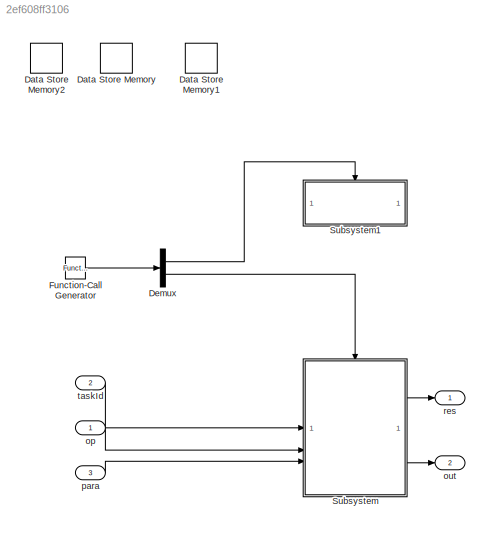
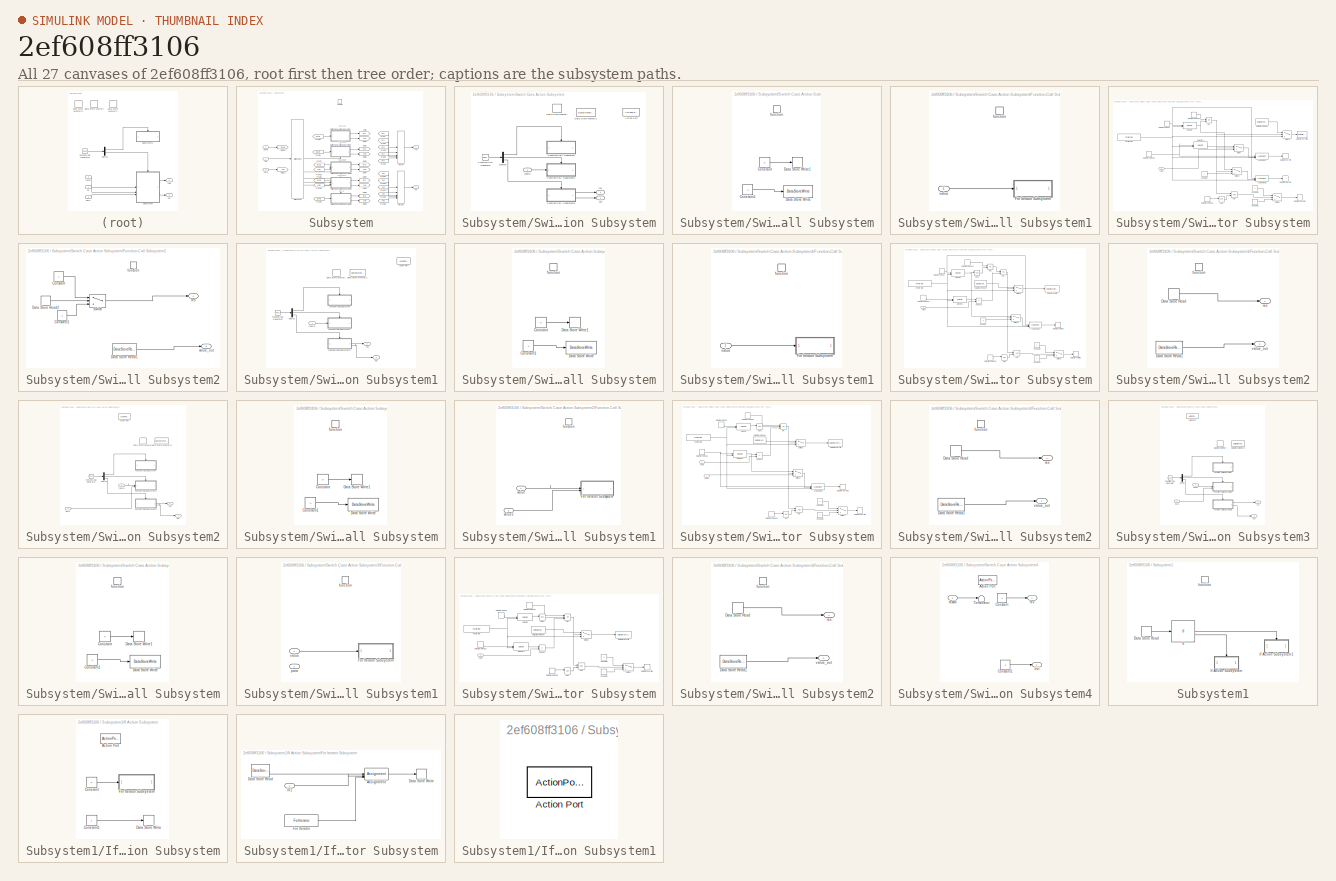
[diagram: thumbnail index - all 27 canvases of the model, root first then tree order]
MODEL slx_2ef608ff3106
KIND model
CONFIG AbsTol = auto
CONFIG EnableMultiTasking = off
CONFIG FixedStep = 1
CONFIG MaxStep = auto
CONFIG MinStep = auto
CONFIG RelTol = 1e-3
CONFIG SampleTimeConstraint = Unconstrained
CONFIG SolverName = FixedStepDiscrete
CONFIG StartTime = 0.0
CONFIG StopTime = 50000000
BLOCK [DataStoreMemory] Data Store Memory
  Dimensions = 16
  OutDataTypeStr = int32
  ReadBeforeWriteMsg = warning
  ShowAdditionalParam = off
  WriteAfterReadMsg = warning
  WriteAfterWriteMsg = warning
BLOCK [DataStoreMemory] Data Store Memory1
  DataStoreName = Aflag
  Dimensions = 16
  OutDataTypeStr = int8
  ReadBeforeWriteMsg = warning
  ShowAdditionalParam = off
  WriteAfterReadMsg = warning
  WriteAfterWriteMsg = warning
BLOCK [DataStoreMemory] Data Store Memory2
  DataStoreName = Init
  Dimensions = 1
  OutDataTypeStr = int8
  ReadBeforeWriteMsg = warning
  ShowAdditionalParam = off
  WriteAfterReadMsg = warning
  WriteAfterWriteMsg = warning
BLOCK [Demux] Demux
  Outputs = 2
BLOCK [Reference] Function-Call Generator  REF=simulink/Ports &
Subsystems/Function-Call
Generator
  SourceBlock = simulink/Ports &\nSubsystems/Function-Call\nGenerator
  SourceType = Function-Call Generator
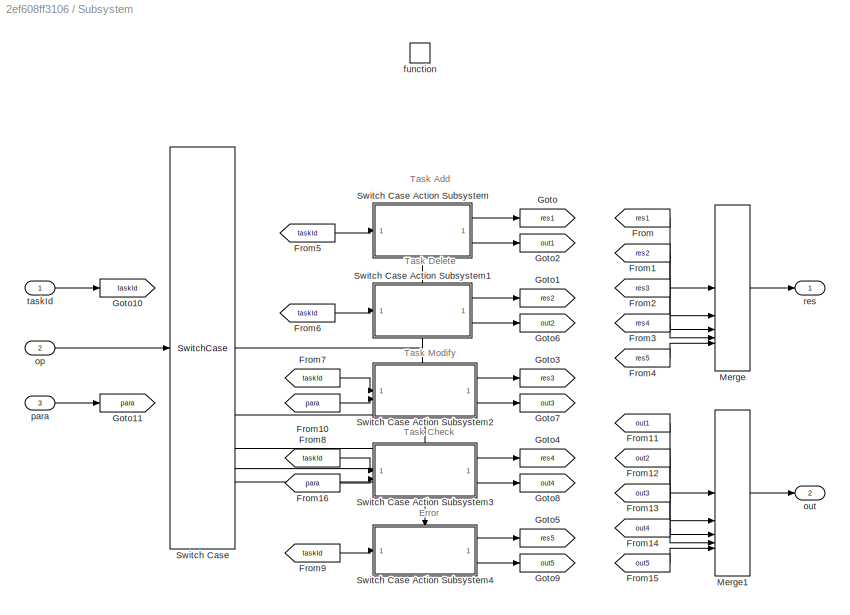
BLOCK [SubSystem] Subsystem
BLOCK [From] Subsystem/From
  GotoTag = res1
BLOCK [From] Subsystem/From1
  GotoTag = res2
BLOCK [From] Subsystem/From10
  GotoTag = para
BLOCK [From] Subsystem/From11
  GotoTag = out1
BLOCK [From] Subsystem/From12
  GotoTag = out2
BLOCK [From] Subsystem/From13
  GotoTag = out3
BLOCK [From] Subsystem/From14
  GotoTag = out4
BLOCK [From] Subsystem/From15
  GotoTag = out5
BLOCK [From] Subsystem/From16
  GotoTag = para
BLOCK [From] Subsystem/From2
  GotoTag = res3
BLOCK [From] Subsystem/From3
  GotoTag = res4
BLOCK [From] Subsystem/From4
  GotoTag = res5
BLOCK [From] Subsystem/From5
  GotoTag = taskId
BLOCK [From] Subsystem/From6
  GotoTag = taskId
BLOCK [From] Subsystem/From7
  GotoTag = taskId
BLOCK [From] Subsystem/From8
  GotoTag = taskId
BLOCK [From] Subsystem/From9
  GotoTag = taskId
BLOCK [Goto] Subsystem/Goto
  GotoTag = res1
BLOCK [Goto] Subsystem/Goto1
  GotoTag = res2
BLOCK [Goto] Subsystem/Goto10
  GotoTag = taskId
BLOCK [Goto] Subsystem/Goto11
  GotoTag = para
BLOCK [Goto] Subsystem/Goto2
  GotoTag = out1
BLOCK [Goto] Subsystem/Goto3
  GotoTag = res3
BLOCK [Goto] Subsystem/Goto4
  GotoTag = res4
BLOCK [Goto] Subsystem/Goto5
  GotoTag = res5
BLOCK [Goto] Subsystem/Goto6
  GotoTag = out2
BLOCK [Goto] Subsystem/Goto7
  GotoTag = out3
BLOCK [Goto] Subsystem/Goto8
  GotoTag = out4
BLOCK [Goto] Subsystem/Goto9
  GotoTag = out5
BLOCK [Merge] Subsystem/Merge
  Inputs = 5
BLOCK [Merge] Subsystem/Merge1
  Inputs = 5
BLOCK [SwitchCase] Subsystem/Switch Case
  CaseConditions = {1,2,3,4}
BLOCK [SubSystem] Subsystem/Switch Case Action Subsystem
  TreatAsAtomicUnit = on
BLOCK [ActionPort] Subsystem/Switch Case Action Subsystem/Action Port
  ActionPortLabel = case [ 1 ]:
BLOCK [DataStoreMemory] Subsystem/Switch Case Action Subsystem/Data Store Memory
  DataStoreName = find
  OutDataTypeStr = int32
  ReadBeforeWriteMsg = warning
  ShowAdditionalParam = off
  WriteAfterReadMsg = warning
  WriteAfterWriteMsg = warning
BLOCK [DataStoreMemory] Subsystem/Switch Case Action Subsystem/Data Store Memory1
  DataStoreName = ret_index
  OutDataTypeStr = int32
  ReadBeforeWriteMsg = warning
  ShowAdditionalParam = off
  WriteAfterReadMsg = warning
  WriteAfterWriteMsg = warning
BLOCK [Demux] Subsystem/Switch Case Action Subsystem/Demux
  Outputs = 3
BLOCK [Reference] Subsystem/Switch Case Action Subsystem/Function-Call Generator  REF=simulink/Ports &
Subsystems/Function-Call
Generator
  SourceBlock = simulink/Ports &\nSubsystems/Function-Call\nGenerator
  SourceType = Function-Call Generator
BLOCK [SubSystem] Subsystem/Switch Case Action Subsystem/Function-Call Subsystem
  TreatAsAtomicUnit = on
BLOCK [Constant] Subsystem/Switch Case Action Subsystem/Function-Call Subsystem/Constant
  OutDataTypeStr = int32
  Value = 0
BLOCK [Constant] Subsystem/Switch Case Action Subsystem/Function-Call Subsystem/Constant1
  OutDataTypeStr = int32
  Value = -1
BLOCK [DataStoreWrite] Subsystem/Switch Case Action Subsystem/Function-Call Subsystem/Data Store Write
  DataStoreName = ret_index
  IndexOptions = Index vector (dialog)
  Indices = 1
  OutputSizes = 1
BLOCK [DataStoreWrite] Subsystem/Switch Case Action Subsystem/Function-Call Subsystem/Data Store Write1
  DataStoreName = find
  IndexOptions = Index vector (dialog)
  Indices = 1
  OutputSizes = 1
BLOCK [TriggerPort] Subsystem/Switch Case Action Subsystem/Function-Call Subsystem/function
  StatesWhenEnabling = held
  TriggerType = function-call
  VariantControl = Variant
BLOCK [SubSystem] Subsystem/Switch Case Action Subsystem/Function-Call Subsystem1
  TreatAsAtomicUnit = on
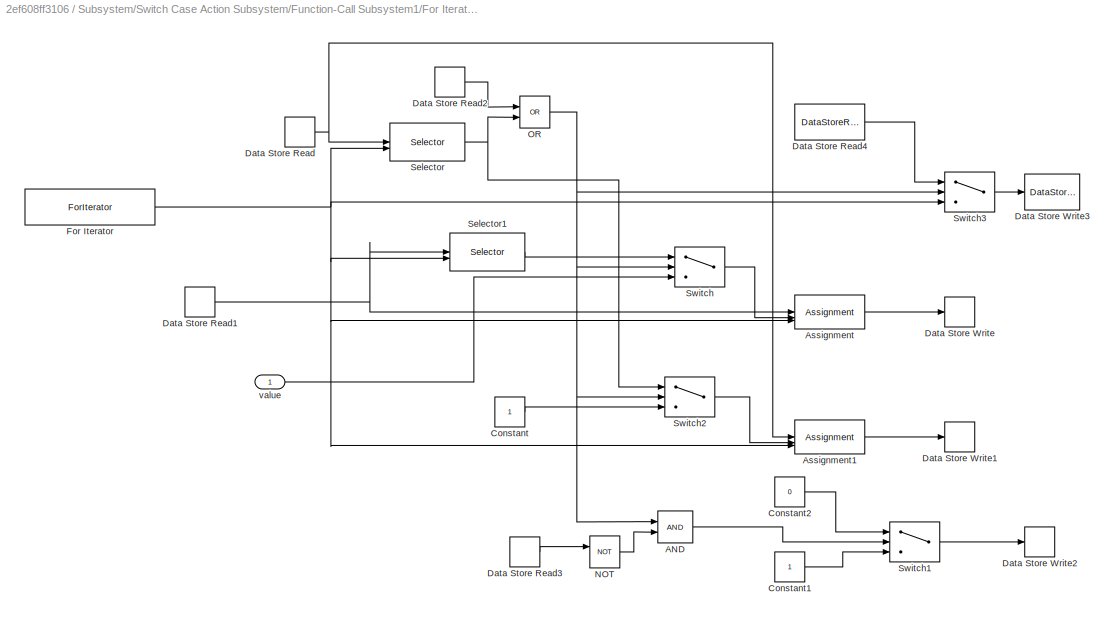
BLOCK [SubSystem] Subsystem/Switch Case Action Subsystem/Function-Call Subsystem1/For Iterator Subsystem
  TreatAsAtomicUnit = on
BLOCK [Logic] Subsystem/Switch Case Action Subsystem/Function-Call Subsystem1/For Iterator Subsystem/AND
  AllPortsSameDT = off
  IconShape = distinctive
  OutDataTypeStr = boolean
BLOCK [Assignment] Subsystem/Switch Case Action Subsystem/Function-Call Subsystem1/For Iterator Subsystem/Assignment
  DiagnosticForDimensions = Warning
  IndexMode = Zero-based
  IndexOptions = Index vector (port)
  Indices = 1
  OutputSizes = 1
BLOCK [Assignment] Subsystem/Switch Case Action Subsystem/Function-Call Subsystem1/For Iterator Subsystem/Assignment1
  DiagnosticForDimensions = Warning
  IndexMode = Zero-based
  IndexOptions = Index vector (port)
  Indices = 1
  OutputSizes = 1
BLOCK [Constant] Subsystem/Switch Case Action Subsystem/Function-Call Subsystem1/For Iterator Subsystem/Constant
  OutDataTypeStr = int8
BLOCK [Constant] Subsystem/Switch Case Action Subsystem/Function-Call Subsystem1/For Iterator Subsystem/Constant1
  OutDataTypeStr = int32
BLOCK [Constant] Subsystem/Switch Case Action Subsystem/Function-Call Subsystem1/For Iterator Subsystem/Constant2
  OutDataTypeStr = int32
  Value = 0
BLOCK [DataStoreRead] Subsystem/Switch Case Action Subsystem/Function-Call Subsystem1/For Iterator Subsystem/Data Store Read
  DataStoreName = Aflag
  IndexOptions = Index vector (dialog)
  Indices = 1
  OutputSizes = 1
BLOCK [DataStoreRead] Subsystem/Switch Case Action Subsystem/Function-Call Subsystem1/For Iterator Subsystem/Data Store Read1
  IndexOptions = Index vector (dialog)
  Indices = 1
  OutputSizes = 1
BLOCK [DataStoreRead] Subsystem/Switch Case Action Subsystem/Function-Call Subsystem1/For Iterator Subsystem/Data Store Read2
  DataStoreName = find
  IndexOptions = Index vector (dialog)
  Indices = 1
  OutputSizes = 1
BLOCK [DataStoreRead] Subsystem/Switch Case Action Subsystem/Function-Call Subsystem1/For Iterator Subsystem/Data Store Read3
  DataStoreName = find
  IndexOptions = Index vector (dialog)
  Indices = 1
  OutputSizes = 1
BLOCK [DataStoreRead] Subsystem/Switch Case Action Subsystem/Function-Call Subsystem1/For Iterator Subsystem/Data Store Read4
  DataStoreName = ret_index
  IndexOptions = Index vector (dialog)
  Indices = 1
  OutputSizes = 1
BLOCK [DataStoreWrite] Subsystem/Switch Case Action Subsystem/Function-Call Subsystem1/For Iterator Subsystem/Data Store Write
  IndexOptions = Index vector (dialog)
  Indices = 1
  OutputSizes = 1
BLOCK [DataStoreWrite] Subsystem/Switch Case Action Subsystem/Function-Call Subsystem1/For Iterator Subsystem/Data Store Write1
  DataStoreName = Aflag
  IndexOptions = Index vector (dialog)
  Indices = 1
  OutputSizes = 1
BLOCK [DataStoreWrite] Subsystem/Switch Case Action Subsystem/Function-Call Subsystem1/For Iterator Subsystem/Data Store Write2
  DataStoreName = find
  IndexOptions = Index vector (dialog)
  Indices = 1
  OutputSizes = 1
BLOCK [DataStoreWrite] Subsystem/Switch Case Action Subsystem/Function-Call Subsystem1/For Iterator Subsystem/Data Store Write3
  DataStoreName = ret_index
  IndexOptions = Index vector (dialog)
  Indices = 1
  OutputSizes = 1
BLOCK [ForIterator] Subsystem/Switch Case Action Subsystem/Function-Call Subsystem1/For Iterator Subsystem/For Iterator
  IndexMode = Zero-based
  IterationLimit = 16
BLOCK [Logic] Subsystem/Switch Case Action Subsystem/Function-Call Subsystem1/For Iterator Subsystem/NOT
  AllPortsSameDT = off
  IconShape = distinctive
  Operator = NOT
  OutDataTypeStr = boolean
BLOCK [Logic] Subsystem/Switch Case Action Subsystem/Function-Call Subsystem1/For Iterator Subsystem/OR
  AllPortsSameDT = off
  IconShape = distinctive
  Operator = OR
  OutDataTypeStr = boolean
BLOCK [Selector] Subsystem/Switch Case Action Subsystem/Function-Call Subsystem1/For Iterator Subsystem/Selector
  IndexMode = Zero-based
  IndexOptions = Index vector (port)
  Indices = [1 3]
  InputPortWidth = 16
  OutputSizes = 1
BLOCK [Selector] Subsystem/Switch Case Action Subsystem/Function-Call Subsystem1/For Iterator Subsystem/Selector1
  IndexMode = Zero-based
  IndexOptions = Index vector (port)
  Indices = [1 3]
  InputPortWidth = 16
  OutputSizes = 1
BLOCK [Switch] Subsystem/Switch Case Action Subsystem/Function-Call Subsystem1/For Iterator Subsystem/Switch
  Criteria = u2 ~= 0
  InputSameDT = off
  SaturateOnIntegerOverflow = off
BLOCK [Switch] Subsystem/Switch Case Action Subsystem/Function-Call Subsystem1/For Iterator Subsystem/Switch1
  Criteria = u2 ~= 0
  InputSameDT = off
  SaturateOnIntegerOverflow = off
BLOCK [Switch] Subsystem/Switch Case Action Subsystem/Function-Call Subsystem1/For Iterator Subsystem/Switch2
  Criteria = u2 ~= 0
  InputSameDT = off
  SaturateOnIntegerOverflow = off
BLOCK [Switch] Subsystem/Switch Case Action Subsystem/Function-Call Subsystem1/For Iterator Subsystem/Switch3
  Criteria = u2 ~= 0
  InputSameDT = off
  SaturateOnIntegerOverflow = off
BLOCK [Inport] Subsystem/Switch Case Action Subsystem/Function-Call Subsystem1/For Iterator Subsystem/value
BLOCK [TriggerPort] Subsystem/Switch Case Action Subsystem/Function-Call Subsystem1/function
  StatesWhenEnabling = held
  TriggerType = function-call
  VariantControl = Variant
BLOCK [Inport] Subsystem/Switch Case Action Subsystem/Function-Call Subsystem1/value
BLOCK [SubSystem] Subsystem/Switch Case Action Subsystem/Function-Call Subsystem2
  TreatAsAtomicUnit = on
BLOCK [Constant] Subsystem/Switch Case Action Subsystem/Function-Call Subsystem2/Constant
  OutDataTypeStr = int32
BLOCK [Constant] Subsystem/Switch Case Action Subsystem/Function-Call Subsystem2/Constant1
  OutDataTypeStr = int32
  Value = -1
BLOCK [DataStoreRead] Subsystem/Switch Case Action Subsystem/Function-Call Subsystem2/Data Store Read1
  DataStoreName = ret_index
  IndexOptions = Index vector (dialog)
  Indices = 1
  OutputSizes = 1
BLOCK [DataStoreRead] Subsystem/Switch Case Action Subsystem/Function-Call Subsystem2/Data Store Read2
  DataStoreName = find
  IndexOptions = Index vector (dialog)
  Indices = 1
  OutputSizes = 1
BLOCK [Switch] Subsystem/Switch Case Action Subsystem/Function-Call Subsystem2/Switch
  Criteria = u2 ~= 0
  InputSameDT = off
  SaturateOnIntegerOverflow = off
BLOCK [TriggerPort] Subsystem/Switch Case Action Subsystem/Function-Call Subsystem2/function
  StatesWhenEnabling = held
  TriggerType = function-call
  VariantControl = Variant
BLOCK [Outport] Subsystem/Switch Case Action Subsystem/Function-Call Subsystem2/res
BLOCK [Outport] Subsystem/Switch Case Action Subsystem/Function-Call Subsystem2/value_out
  Port = 2
BLOCK [Outport] Subsystem/Switch Case Action Subsystem/out
  Port = 2
BLOCK [Outport] Subsystem/Switch Case Action Subsystem/res
BLOCK [Inport] Subsystem/Switch Case Action Subsystem/taskId
BLOCK [SubSystem] Subsystem/Switch Case Action Subsystem1
  TreatAsAtomicUnit = on
BLOCK [ActionPort] Subsystem/Switch Case Action Subsystem1/Action Port
  ActionPortLabel = case [ 2 ]:
BLOCK [DataStoreMemory] Subsystem/Switch Case Action Subsystem1/Data Store Memory
  DataStoreName = find
  OutDataTypeStr = int32
  ReadBeforeWriteMsg = warning
  ShowAdditionalParam = off
  WriteAfterReadMsg = warning
  WriteAfterWriteMsg = warning
BLOCK [DataStoreMemory] Subsystem/Switch Case Action Subsystem1/Data Store Memory1
  DataStoreName = ret_index
  OutDataTypeStr = int32
  ReadBeforeWriteMsg = warning
  ShowAdditionalParam = off
  WriteAfterReadMsg = warning
  WriteAfterWriteMsg = warning
BLOCK [Demux] Subsystem/Switch Case Action Subsystem1/Demux
  Outputs = 3
BLOCK [Reference] Subsystem/Switch Case Action Subsystem1/Function-Call Generator  REF=simulink/Ports &
Subsystems/Function-Call
Generator
  SourceBlock = simulink/Ports &\nSubsystems/Function-Call\nGenerator
  SourceType = Function-Call Generator
BLOCK [SubSystem] Subsystem/Switch Case Action Subsystem1/Function-Call Subsystem
  TreatAsAtomicUnit = on
BLOCK [Constant] Subsystem/Switch Case Action Subsystem1/Function-Call Subsystem/Constant
  OutDataTypeStr = int32
  Value = 0
BLOCK [Constant] Subsystem/Switch Case Action Subsystem1/Function-Call Subsystem/Constant1
  OutDataTypeStr = int32
  Value = -1
BLOCK [DataStoreWrite] Subsystem/Switch Case Action Subsystem1/Function-Call Subsystem/Data Store Write
  DataStoreName = ret_index
  IndexOptions = Index vector (dialog)
  Indices = 1
  OutputSizes = 1
BLOCK [DataStoreWrite] Subsystem/Switch Case Action Subsystem1/Function-Call Subsystem/Data Store Write1
  DataStoreName = find
  IndexOptions = Index vector (dialog)
  Indices = 1
  OutputSizes = 1
BLOCK [TriggerPort] Subsystem/Switch Case Action Subsystem1/Function-Call Subsystem/function
  StatesWhenEnabling = held
  TriggerType = function-call
  VariantControl = Variant
BLOCK [SubSystem] Subsystem/Switch Case Action Subsystem1/Function-Call Subsystem1
  TreatAsAtomicUnit = on
BLOCK [SubSystem] Subsystem/Switch Case Action Subsystem1/Function-Call Subsystem1/For Iterator Subsystem
  TreatAsAtomicUnit = on
BLOCK [Logic] Subsystem/Switch Case Action Subsystem1/Function-Call Subsystem1/For Iterator Subsystem/AND
  AllPortsSameDT = off
  IconShape = distinctive
  OutDataTypeStr = boolean
BLOCK [Assignment] Subsystem/Switch Case Action Subsystem1/Function-Call Subsystem1/For Iterator Subsystem/Assignment1
  DiagnosticForDimensions = Warning
  IndexMode = Zero-based
  IndexOptions = Index vector (port)
  Indices = 1
  OutputSizes = 1
BLOCK [Constant] Subsystem/Switch Case Action Subsystem1/Function-Call Subsystem1/For Iterator Subsystem/Constant
  OutDataTypeStr = int8
  Value = 0
BLOCK [Constant] Subsystem/Switch Case Action Subsystem1/Function-Call Subsystem1/For Iterator Subsystem/Constant1
  OutDataTypeStr = int32
BLOCK [Constant] Subsystem/Switch Case Action Subsystem1/Function-Call Subsystem1/For Iterator Subsystem/Constant2
  OutDataTypeStr = int32
  Value = 0
BLOCK [DataStoreRead] Subsystem/Switch Case Action Subsystem1/Function-Call Subsystem1/For Iterator Subsystem/Data Store Read
  DataStoreName = Aflag
  IndexOptions = Index vector (dialog)
  Indices = 1
  OutputSizes = 1
BLOCK [DataStoreRead] Subsystem/Switch Case Action Subsystem1/Function-Call Subsystem1/For Iterator Subsystem/Data Store Read1
  IndexOptions = Index vector (dialog)
  Indices = 1
  OutputSizes = 1
BLOCK [DataStoreRead] Subsystem/Switch Case Action Subsystem1/Function-Call Subsystem1/For Iterator Subsystem/Data Store Read2
  DataStoreName = find
  IndexOptions = Index vector (dialog)
  Indices = 1
  OutputSizes = 1
BLOCK [DataStoreRead] Subsystem/Switch Case Action Subsystem1/Function-Call Subsystem1/For Iterator Subsystem/Data Store Read3
  DataStoreName = find
  IndexOptions = Index vector (dialog)
  Indices = 1
  OutputSizes = 1
BLOCK [DataStoreRead] Subsystem/Switch Case Action Subsystem1/Function-Call Subsystem1/For Iterator Subsystem/Data Store Read4
  DataStoreName = ret_index
  IndexOptions = Index vector (dialog)
  Indices = 1
  OutputSizes = 1
BLOCK [DataStoreWrite] Subsystem/Switch Case Action Subsystem1/Function-Call Subsystem1/For Iterator Subsystem/Data Store Write
  DataStoreName = ret_index
  IndexOptions = Index vector (dialog)
  Indices = 1
  OutputSizes = 1
BLOCK [DataStoreWrite] Subsystem/Switch Case Action Subsystem1/Function-Call Subsystem1/For Iterator Subsystem/Data Store Write1
  DataStoreName = Aflag
  IndexOptions = Index vector (dialog)
  Indices = 1
  OutputSizes = 1
BLOCK [DataStoreWrite] Subsystem/Switch Case Action Subsystem1/Function-Call Subsystem1/For Iterator Subsystem/Data Store Write2
  DataStoreName = find
  IndexOptions = Index vector (dialog)
  Indices = 1
  OutputSizes = 1
BLOCK [ForIterator] Subsystem/Switch Case Action Subsystem1/Function-Call Subsystem1/For Iterator Subsystem/For Iterator
  IndexMode = Zero-based
  IterationLimit = 16
BLOCK [Logic] Subsystem/Switch Case Action Subsystem1/Function-Call Subsystem1/For Iterator Subsystem/NOT
  AllPortsSameDT = off
  IconShape = distinctive
  Operator = NOT
  OutDataTypeStr = boolean
BLOCK [Logic] Subsystem/Switch Case Action Subsystem1/Function-Call Subsystem1/For Iterator Subsystem/NOT1
  AllPortsSameDT = off
  IconShape = distinctive
  Operator = NOT
  OutDataTypeStr = boolean
BLOCK [Logic] Subsystem/Switch Case Action Subsystem1/Function-Call Subsystem1/For Iterator Subsystem/OR
  AllPortsSameDT = off
  IconShape = distinctive
  Operator = OR
  OutDataTypeStr = boolean
BLOCK [Logic] Subsystem/Switch Case Action Subsystem1/Function-Call Subsystem1/For Iterator Subsystem/OR1
  AllPortsSameDT = off
  IconShape = distinctive
  Operator = OR
  OutDataTypeStr = boolean
BLOCK [Selector] Subsystem/Switch Case Action Subsystem1/Function-Call Subsystem1/For Iterator Subsystem/Selector
  IndexMode = Zero-based
  IndexOptions = Index vector (port)
  Indices = [1 3]
  InputPortWidth = 16
  OutputSizes = 1
BLOCK [Selector] Subsystem/Switch Case Action Subsystem1/Function-Call Subsystem1/For Iterator Subsystem/Selector1
  IndexMode = Zero-based
  IndexOptions = Index vector (port)
  Indices = [1 3]
  InputPortWidth = 16
  OutputSizes = 1
BLOCK [Sum] Subsystem/Switch Case Action Subsystem1/Function-Call Subsystem1/For Iterator Subsystem/Subtract
  IconShape = rectangular
  Inputs = +-
BLOCK [Switch] Subsystem/Switch Case Action Subsystem1/Function-Call Subsystem1/For Iterator Subsystem/Switch1
  Criteria = u2 ~= 0
  InputSameDT = off
  SaturateOnIntegerOverflow = off
BLOCK [Switch] Subsystem/Switch Case Action Subsystem1/Function-Call Subsystem1/For Iterator Subsystem/Switch2
  Criteria = u2 ~= 0
  InputSameDT = off
  SaturateOnIntegerOverflow = off
BLOCK [Switch] Subsystem/Switch Case Action Subsystem1/Function-Call Subsystem1/For Iterator Subsystem/Switch3
  Criteria = u2 ~= 0
  InputSameDT = off
  SaturateOnIntegerOverflow = off
BLOCK [Inport] Subsystem/Switch Case Action Subsystem1/Function-Call Subsystem1/For Iterator Subsystem/value
BLOCK [TriggerPort] Subsystem/Switch Case Action Subsystem1/Function-Call Subsystem1/function
  StatesWhenEnabling = held
  TriggerType = function-call
  VariantControl = Variant
BLOCK [Inport] Subsystem/Switch Case Action Subsystem1/Function-Call Subsystem1/value
BLOCK [SubSystem] Subsystem/Switch Case Action Subsystem1/Function-Call Subsystem2
  TreatAsAtomicUnit = on
BLOCK [DataStoreRead] Subsystem/Switch Case Action Subsystem1/Function-Call Subsystem2/Data Store Read
  DataStoreName = find
  IndexOptions = Index vector (dialog)
  Indices = 1
  OutputSizes = 1
BLOCK [DataStoreRead] Subsystem/Switch Case Action Subsystem1/Function-Call Subsystem2/Data Store Read1
  DataStoreName = ret_index
  IndexOptions = Index vector (dialog)
  Indices = 1
  OutputSizes = 1
BLOCK [TriggerPort] Subsystem/Switch Case Action Subsystem1/Function-Call Subsystem2/function
  StatesWhenEnabling = held
  TriggerType = function-call
  VariantControl = Variant
BLOCK [Outport] Subsystem/Switch Case Action Subsystem1/Function-Call Subsystem2/res
BLOCK [Outport] Subsystem/Switch Case Action Subsystem1/Function-Call Subsystem2/value_out
  Port = 2
BLOCK [Outport] Subsystem/Switch Case Action Subsystem1/out
  Port = 2
BLOCK [Outport] Subsystem/Switch Case Action Subsystem1/res
BLOCK [Inport] Subsystem/Switch Case Action Subsystem1/taskId
BLOCK [SubSystem] Subsystem/Switch Case Action Subsystem2
  TreatAsAtomicUnit = on
BLOCK [ActionPort] Subsystem/Switch Case Action Subsystem2/Action Port
  ActionPortLabel = case [ 3 ]:
BLOCK [DataStoreMemory] Subsystem/Switch Case Action Subsystem2/Data Store Memory
  DataStoreName = find
  OutDataTypeStr = int32
  ReadBeforeWriteMsg = warning
  ShowAdditionalParam = off
  WriteAfterReadMsg = warning
  WriteAfterWriteMsg = warning
BLOCK [DataStoreMemory] Subsystem/Switch Case Action Subsystem2/Data Store Memory1
  DataStoreName = ret_index
  OutDataTypeStr = int32
  ReadBeforeWriteMsg = warning
  ShowAdditionalParam = off
  WriteAfterReadMsg = warning
  WriteAfterWriteMsg = warning
BLOCK [Demux] Subsystem/Switch Case Action Subsystem2/Demux
  Outputs = 3
BLOCK [Reference] Subsystem/Switch Case Action Subsystem2/Function-Call Generator  REF=simulink/Ports &
Subsystems/Function-Call
Generator
  SourceBlock = simulink/Ports &\nSubsystems/Function-Call\nGenerator
  SourceType = Function-Call Generator
BLOCK [SubSystem] Subsystem/Switch Case Action Subsystem2/Function-Call Subsystem
  TreatAsAtomicUnit = on
BLOCK [Constant] Subsystem/Switch Case Action Subsystem2/Function-Call Subsystem/Constant
  OutDataTypeStr = int32
  Value = 0
BLOCK [Constant] Subsystem/Switch Case Action Subsystem2/Function-Call Subsystem/Constant1
  OutDataTypeStr = int32
  Value = -1
BLOCK [DataStoreWrite] Subsystem/Switch Case Action Subsystem2/Function-Call Subsystem/Data Store Write
  DataStoreName = ret_index
  IndexOptions = Index vector (dialog)
  Indices = 1
  OutputSizes = 1
BLOCK [DataStoreWrite] Subsystem/Switch Case Action Subsystem2/Function-Call Subsystem/Data Store Write1
  DataStoreName = find
  IndexOptions = Index vector (dialog)
  Indices = 1
  OutputSizes = 1
BLOCK [TriggerPort] Subsystem/Switch Case Action Subsystem2/Function-Call Subsystem/function
  StatesWhenEnabling = held
  TriggerType = function-call
  VariantControl = Variant
BLOCK [SubSystem] Subsystem/Switch Case Action Subsystem2/Function-Call Subsystem1
  TreatAsAtomicUnit = on
BLOCK [SubSystem] Subsystem/Switch Case Action Subsystem2/Function-Call Subsystem1/For Iterator Subsystem
  TreatAsAtomicUnit = on
BLOCK [Logic] Subsystem/Switch Case Action Subsystem2/Function-Call Subsystem1/For Iterator Subsystem/AND
  AllPortsSameDT = off
  IconShape = distinctive
  OutDataTypeStr = boolean
BLOCK [Assignment] Subsystem/Switch Case Action Subsystem2/Function-Call Subsystem1/For Iterator Subsystem/Assignment1
  DiagnosticForDimensions = Warning
  IndexMode = Zero-based
  IndexOptions = Index vector (port)
  Indices = 1
  OutputSizes = 1
BLOCK [Constant] Subsystem/Switch Case Action Subsystem2/Function-Call Subsystem1/For Iterator Subsystem/Constant1
  OutDataTypeStr = int32
BLOCK [Constant] Subsystem/Switch Case Action Subsystem2/Function-Call Subsystem1/For Iterator Subsystem/Constant2
  OutDataTypeStr = int32
  Value = 0
BLOCK [DataStoreRead] Subsystem/Switch Case Action Subsystem2/Function-Call Subsystem1/For Iterator Subsystem/Data Store Read
  DataStoreName = Aflag
  IndexOptions = Index vector (dialog)
  Indices = 1
  OutputSizes = 1
BLOCK [DataStoreRead] Subsystem/Switch Case Action Subsystem2/Function-Call Subsystem1/For Iterator Subsystem/Data Store Read1
  IndexOptions = Index vector (dialog)
  Indices = 1
  OutputSizes = 1
BLOCK [DataStoreRead] Subsystem/Switch Case Action Subsystem2/Function-Call Subsystem1/For Iterator Subsystem/Data Store Read2
  DataStoreName = find
  IndexOptions = Index vector (dialog)
  Indices = 1
  OutputSizes = 1
BLOCK [DataStoreRead] Subsystem/Switch Case Action Subsystem2/Function-Call Subsystem1/For Iterator Subsystem/Data Store Read3
  DataStoreName = find
  IndexOptions = Index vector (dialog)
  Indices = 1
  OutputSizes = 1
BLOCK [DataStoreRead] Subsystem/Switch Case Action Subsystem2/Function-Call Subsystem1/For Iterator Subsystem/Data Store Read4
  DataStoreName = ret_index
  IndexOptions = Index vector (dialog)
  Indices = 1
  OutputSizes = 1
BLOCK [DataStoreWrite] Subsystem/Switch Case Action Subsystem2/Function-Call Subsystem1/For Iterator Subsystem/Data Store Write
  DataStoreName = ret_index
  IndexOptions = Index vector (dialog)
  Indices = 1
  OutputSizes = 1
BLOCK [DataStoreWrite] Subsystem/Switch Case Action Subsystem2/Function-Call Subsystem1/For Iterator Subsystem/Data Store Write2
  DataStoreName = find
  IndexOptions = Index vector (dialog)
  Indices = 1
  OutputSizes = 1
BLOCK [DataStoreWrite] Subsystem/Switch Case Action Subsystem2/Function-Call Subsystem1/For Iterator Subsystem/Data Store Write3
  IndexOptions = Index vector (dialog)
  Indices = 1
  OutputSizes = 1
BLOCK [ForIterator] Subsystem/Switch Case Action Subsystem2/Function-Call Subsystem1/For Iterator Subsystem/For Iterator
  IndexMode = Zero-based
  IterationLimit = 16
BLOCK [Logic] Subsystem/Switch Case Action Subsystem2/Function-Call Subsystem1/For Iterator Subsystem/NOT
  AllPortsSameDT = off
  IconShape = distinctive
  Operator = NOT
  OutDataTypeStr = boolean
BLOCK [Logic] Subsystem/Switch Case Action Subsystem2/Function-Call Subsystem1/For Iterator Subsystem/NOT1
  AllPortsSameDT = off
  IconShape = distinctive
  Operator = NOT
  OutDataTypeStr = boolean
BLOCK [Logic] Subsystem/Switch Case Action Subsystem2/Function-Call Subsystem1/For Iterator Subsystem/OR
  AllPortsSameDT = off
  IconShape = distinctive
  Inputs = 3
  Operator = OR
  OutDataTypeStr = boolean
BLOCK [Selector] Subsystem/Switch Case Action Subsystem2/Function-Call Subsystem1/For Iterator Subsystem/Selector
  IndexMode = Zero-based
  IndexOptions = Index vector (port)
  Indices = [1 3]
  InputPortWidth = 16
  OutputSizes = 1
BLOCK [Selector] Subsystem/Switch Case Action Subsystem2/Function-Call Subsystem1/For Iterator Subsystem/Selector1
  IndexMode = Zero-based
  IndexOptions = Index vector (port)
  Indices = [1 3]
  InputPortWidth = 16
  OutputSizes = 1
BLOCK [Sum] Subsystem/Switch Case Action Subsystem2/Function-Call Subsystem1/For Iterator Subsystem/Subtract
  IconShape = rectangular
  Inputs = +-
BLOCK [Switch] Subsystem/Switch Case Action Subsystem2/Function-Call Subsystem1/For Iterator Subsystem/Switch1
  Criteria = u2 ~= 0
  InputSameDT = off
  SaturateOnIntegerOverflow = off
BLOCK [Switch] Subsystem/Switch Case Action Subsystem2/Function-Call Subsystem1/For Iterator Subsystem/Switch2
  Criteria = u2 ~= 0
  InputSameDT = off
  SaturateOnIntegerOverflow = off
BLOCK [Switch] Subsystem/Switch Case Action Subsystem2/Function-Call Subsystem1/For Iterator Subsystem/Switch3
  Criteria = u2 ~= 0
  InputSameDT = off
  SaturateOnIntegerOverflow = off
BLOCK [Inport] Subsystem/Switch Case Action Subsystem2/Function-Call Subsystem1/For Iterator Subsystem/value
BLOCK [Inport] Subsystem/Switch Case Action Subsystem2/Function-Call Subsystem1/For Iterator Subsystem/value2
  Port = 2
BLOCK [TriggerPort] Subsystem/Switch Case Action Subsystem2/Function-Call Subsystem1/function
  StatesWhenEnabling = held
  TriggerType = function-call
  VariantControl = Variant
BLOCK [Inport] Subsystem/Switch Case Action Subsystem2/Function-Call Subsystem1/value
BLOCK [Inport] Subsystem/Switch Case Action Subsystem2/Function-Call Subsystem1/value2
  Port = 2
BLOCK [SubSystem] Subsystem/Switch Case Action Subsystem2/Function-Call Subsystem2
  TreatAsAtomicUnit = on
BLOCK [DataStoreRead] Subsystem/Switch Case Action Subsystem2/Function-Call Subsystem2/Data Store Read
  DataStoreName = find
  IndexOptions = Index vector (dialog)
  Indices = 1
  OutputSizes = 1
BLOCK [DataStoreRead] Subsystem/Switch Case Action Subsystem2/Function-Call Subsystem2/Data Store Read1
  DataStoreName = ret_index
  IndexOptions = Index vector (dialog)
  Indices = 1
  OutputSizes = 1
BLOCK [TriggerPort] Subsystem/Switch Case Action Subsystem2/Function-Call Subsystem2/function
  StatesWhenEnabling = held
  TriggerType = function-call
  VariantControl = Variant
BLOCK [Outport] Subsystem/Switch Case Action Subsystem2/Function-Call Subsystem2/res
BLOCK [Outport] Subsystem/Switch Case Action Subsystem2/Function-Call Subsystem2/value_out
  Port = 2
BLOCK [Outport] Subsystem/Switch Case Action Subsystem2/out
  Port = 2
BLOCK [Inport] Subsystem/Switch Case Action Subsystem2/para
  Port = 2
BLOCK [Outport] Subsystem/Switch Case Action Subsystem2/res
BLOCK [Inport] Subsystem/Switch Case Action Subsystem2/taskId
BLOCK [SubSystem] Subsystem/Switch Case Action Subsystem3
  TreatAsAtomicUnit = on
BLOCK [ActionPort] Subsystem/Switch Case Action Subsystem3/Action Port
  ActionPortLabel = case [ 4 ]:
BLOCK [DataStoreMemory] Subsystem/Switch Case Action Subsystem3/Data Store Memory
  DataStoreName = find
  OutDataTypeStr = int32
  ReadBeforeWriteMsg = warning
  ShowAdditionalParam = off
  WriteAfterReadMsg = warning
  WriteAfterWriteMsg = warning
BLOCK [DataStoreMemory] Subsystem/Switch Case Action Subsystem3/Data Store Memory1
  DataStoreName = ret_index
  OutDataTypeStr = int32
  ReadBeforeWriteMsg = warning
  ShowAdditionalParam = off
  WriteAfterReadMsg = warning
  WriteAfterWriteMsg = warning
BLOCK [Demux] Subsystem/Switch Case Action Subsystem3/Demux
  Outputs = 3
BLOCK [Reference] Subsystem/Switch Case Action Subsystem3/Function-Call Generator  REF=simulink/Ports &
Subsystems/Function-Call
Generator
  SourceBlock = simulink/Ports &\nSubsystems/Function-Call\nGenerator
  SourceType = Function-Call Generator
BLOCK [SubSystem] Subsystem/Switch Case Action Subsystem3/Function-Call Subsystem
  TreatAsAtomicUnit = on
BLOCK [Constant] Subsystem/Switch Case Action Subsystem3/Function-Call Subsystem/Constant
  OutDataTypeStr = int32
  Value = 0
BLOCK [Constant] Subsystem/Switch Case Action Subsystem3/Function-Call Subsystem/Constant1
  OutDataTypeStr = int32
  Value = -1
BLOCK [DataStoreWrite] Subsystem/Switch Case Action Subsystem3/Function-Call Subsystem/Data Store Write
  DataStoreName = ret_index
  IndexOptions = Index vector (dialog)
  Indices = 1
  OutputSizes = 1
BLOCK [DataStoreWrite] Subsystem/Switch Case Action Subsystem3/Function-Call Subsystem/Data Store Write1
  DataStoreName = find
  IndexOptions = Index vector (dialog)
  Indices = 1
  OutputSizes = 1
BLOCK [TriggerPort] Subsystem/Switch Case Action Subsystem3/Function-Call Subsystem/function
  StatesWhenEnabling = held
  TriggerType = function-call
  VariantControl = Variant
BLOCK [SubSystem] Subsystem/Switch Case Action Subsystem3/Function-Call Subsystem1
  TreatAsAtomicUnit = on
BLOCK [SubSystem] Subsystem/Switch Case Action Subsystem3/Function-Call Subsystem1/For Iterator Subsystem
  TreatAsAtomicUnit = on
BLOCK [Logic] Subsystem/Switch Case Action Subsystem3/Function-Call Subsystem1/For Iterator Subsystem/AND
  AllPortsSameDT = off
  IconShape = distinctive
  OutDataTypeStr = boolean
BLOCK [Constant] Subsystem/Switch Case Action Subsystem3/Function-Call Subsystem1/For Iterator Subsystem/Constant1
  OutDataTypeStr = int32
BLOCK [Constant] Subsystem/Switch Case Action Subsystem3/Function-Call Subsystem1/For Iterator Subsystem/Constant2
  OutDataTypeStr = int32
  Value = 0
BLOCK [DataStoreRead] Subsystem/Switch Case Action Subsystem3/Function-Call Subsystem1/For Iterator Subsystem/Data Store Read
  DataStoreName = Aflag
  IndexOptions = Index vector (dialog)
  Indices = 1
  OutputSizes = 1
BLOCK [DataStoreRead] Subsystem/Switch Case Action Subsystem3/Function-Call Subsystem1/For Iterator Subsystem/Data Store Read1
  IndexOptions = Index vector (dialog)
  Indices = 1
  OutputSizes = 1
BLOCK [DataStoreRead] Subsystem/Switch Case Action Subsystem3/Function-Call Subsystem1/For Iterator Subsystem/Data Store Read2
  DataStoreName = find
  IndexOptions = Index vector (dialog)
  Indices = 1
  OutputSizes = 1
BLOCK [DataStoreRead] Subsystem/Switch Case Action Subsystem3/Function-Call Subsystem1/For Iterator Subsystem/Data Store Read3
  DataStoreName = find
  IndexOptions = Index vector (dialog)
  Indices = 1
  OutputSizes = 1
BLOCK [DataStoreRead] Subsystem/Switch Case Action Subsystem3/Function-Call Subsystem1/For Iterator Subsystem/Data Store Read4
  DataStoreName = ret_index
  IndexOptions = Index vector (dialog)
  Indices = 1
  OutputSizes = 1
BLOCK [DataStoreWrite] Subsystem/Switch Case Action Subsystem3/Function-Call Subsystem1/For Iterator Subsystem/Data Store Write
  DataStoreName = ret_index
  IndexOptions = Index vector (dialog)
  Indices = 1
  OutputSizes = 1
BLOCK [DataStoreWrite] Subsystem/Switch Case Action Subsystem3/Function-Call Subsystem1/For Iterator Subsystem/Data Store Write2
  DataStoreName = find
  IndexOptions = Index vector (dialog)
  Indices = 1
  OutputSizes = 1
BLOCK [ForIterator] Subsystem/Switch Case Action Subsystem3/Function-Call Subsystem1/For Iterator Subsystem/For Iterator
  IndexMode = Zero-based
  IterationLimit = 16
BLOCK [Logic] Subsystem/Switch Case Action Subsystem3/Function-Call Subsystem1/For Iterator Subsystem/NOT
  AllPortsSameDT = off
  IconShape = distinctive
  Operator = NOT
  OutDataTypeStr = boolean
BLOCK [Logic] Subsystem/Switch Case Action Subsystem3/Function-Call Subsystem1/For Iterator Subsystem/NOT1
  AllPortsSameDT = off
  IconShape = distinctive
  Operator = NOT
  OutDataTypeStr = boolean
BLOCK [Logic] Subsystem/Switch Case Action Subsystem3/Function-Call Subsystem1/For Iterator Subsystem/OR
  AllPortsSameDT = off
  IconShape = distinctive
  Inputs = 3
  Operator = OR
  OutDataTypeStr = boolean
BLOCK [Selector] Subsystem/Switch Case Action Subsystem3/Function-Call Subsystem1/For Iterator Subsystem/Selector
  IndexMode = Zero-based
  IndexOptions = Index vector (port)
  Indices = [1 3]
  InputPortWidth = 16
  OutputSizes = 1
BLOCK [Selector] Subsystem/Switch Case Action Subsystem3/Function-Call Subsystem1/For Iterator Subsystem/Selector1
  IndexMode = Zero-based
  IndexOptions = Index vector (port)
  Indices = [1 3]
  InputPortWidth = 16
  OutputSizes = 1
BLOCK [Sum] Subsystem/Switch Case Action Subsystem3/Function-Call Subsystem1/For Iterator Subsystem/Subtract
  IconShape = rectangular
  Inputs = +-
BLOCK [Switch] Subsystem/Switch Case Action Subsystem3/Function-Call Subsystem1/For Iterator Subsystem/Switch1
  Criteria = u2 ~= 0
  InputSameDT = off
  SaturateOnIntegerOverflow = off
BLOCK [Switch] Subsystem/Switch Case Action Subsystem3/Function-Call Subsystem1/For Iterator Subsystem/Switch3
  Criteria = u2 ~= 0
  InputSameDT = off
  SaturateOnIntegerOverflow = off
BLOCK [Inport] Subsystem/Switch Case Action Subsystem3/Function-Call Subsystem1/For Iterator Subsystem/value
BLOCK [TriggerPort] Subsystem/Switch Case Action Subsystem3/Function-Call Subsystem1/function
  StatesWhenEnabling = held
  TriggerType = function-call
  VariantControl = Variant
BLOCK [Inport] Subsystem/Switch Case Action Subsystem3/Function-Call Subsystem1/para
  Port = 2
BLOCK [Inport] Subsystem/Switch Case Action Subsystem3/Function-Call Subsystem1/value
BLOCK [SubSystem] Subsystem/Switch Case Action Subsystem3/Function-Call Subsystem2
  TreatAsAtomicUnit = on
BLOCK [DataStoreRead] Subsystem/Switch Case Action Subsystem3/Function-Call Subsystem2/Data Store Read
  DataStoreName = find
  IndexOptions = Index vector (dialog)
  Indices = 1
  OutputSizes = 1
BLOCK [DataStoreRead] Subsystem/Switch Case Action Subsystem3/Function-Call Subsystem2/Data Store Read1
  DataStoreName = ret_index
  IndexOptions = Index vector (dialog)
  Indices = 1
  OutputSizes = 1
BLOCK [TriggerPort] Subsystem/Switch Case Action Subsystem3/Function-Call Subsystem2/function
  StatesWhenEnabling = held
  TriggerType = function-call
  VariantControl = Variant
BLOCK [Outport] Subsystem/Switch Case Action Subsystem3/Function-Call Subsystem2/res
BLOCK [Outport] Subsystem/Switch Case Action Subsystem3/Function-Call Subsystem2/value_out
  Port = 2
BLOCK [Outport] Subsystem/Switch Case Action Subsystem3/out
  Port = 2
BLOCK [Inport] Subsystem/Switch Case Action Subsystem3/para
  Port = 2
BLOCK [Outport] Subsystem/Switch Case Action Subsystem3/res
BLOCK [Inport] Subsystem/Switch Case Action Subsystem3/taskId
BLOCK [SubSystem] Subsystem/Switch Case Action Subsystem4
  TreatAsAtomicUnit = on
BLOCK [ActionPort] Subsystem/Switch Case Action Subsystem4/Action Port
  ActionPortLabel = default:
BLOCK [Constant] Subsystem/Switch Case Action Subsystem4/Constant
  OutDataTypeStr = int32
  Value = -1
BLOCK [Constant] Subsystem/Switch Case Action Subsystem4/Constant1
  OutDataTypeStr = int32
  Value = -1
BLOCK [Terminator] Subsystem/Switch Case Action Subsystem4/Terminator
BLOCK [Outport] Subsystem/Switch Case Action Subsystem4/out
  Port = 2
BLOCK [Outport] Subsystem/Switch Case Action Subsystem4/res
BLOCK [Inport] Subsystem/Switch Case Action Subsystem4/taskId
BLOCK [TriggerPort] Subsystem/function
  StatesWhenEnabling = held
  TriggerType = function-call
  VariantControl = Variant
BLOCK [Inport] Subsystem/op
  Port = 2
BLOCK [Outport] Subsystem/out
  Port = 2
BLOCK [Inport] Subsystem/para
  Port = 3
BLOCK [Outport] Subsystem/res
BLOCK [Inport] Subsystem/taskId
BLOCK [SubSystem] Subsystem1
BLOCK [DataStoreRead] Subsystem1/Data Store Read
  DataStoreName = Init
  IndexOptions = Index vector (dialog)
  Indices = 1
  OutputSizes = 1
BLOCK [If] Subsystem1/If
BLOCK [SubSystem] Subsystem1/If Action Subsystem
  TreatAsAtomicUnit = on
BLOCK [ActionPort] Subsystem1/If Action Subsystem/Action Port
  ActionPortLabel = else
BLOCK [Constant] Subsystem1/If Action Subsystem/Constant
  OutDataTypeStr = int8
  Value = 0
BLOCK [Constant] Subsystem1/If Action Subsystem/Constant1
  OutDataTypeStr = int8
BLOCK [DataStoreWrite] Subsystem1/If Action Subsystem/Data Store Write
  DataStoreName = Init
  IndexOptions = Index vector (dialog)
  Indices = 1
  OutputSizes = 1
BLOCK [SubSystem] Subsystem1/If Action Subsystem/For Iterator Subsystem
  TreatAsAtomicUnit = on
BLOCK [Assignment] Subsystem1/If Action Subsystem/For Iterator Subsystem/Assignment
  DiagnosticForDimensions = Warning
  IndexMode = Zero-based
  IndexOptions = Index vector (port)
  Indices = 1
  OutputSizes = 1
BLOCK [DataStoreRead] Subsystem1/If Action Subsystem/For Iterator Subsystem/Data Store Read
  DataStoreName = Aflag
  IndexOptions = Index vector (dialog)
  Indices = 1
  OutputSizes = 1
BLOCK [DataStoreWrite] Subsystem1/If Action Subsystem/For Iterator Subsystem/Data Store Write
  DataStoreName = Aflag
  IndexOptions = Index vector (dialog)
  Indices = 1
  OutputSizes = 1
BLOCK [ForIterator] Subsystem1/If Action Subsystem/For Iterator Subsystem/For Iterator
  IndexMode = Zero-based
  IterationLimit = 16
BLOCK [Inport] Subsystem1/If Action Subsystem/For Iterator Subsystem/In1
BLOCK [SubSystem] Subsystem1/If Action Subsystem1
  TreatAsAtomicUnit = on
BLOCK [ActionPort] Subsystem1/If Action Subsystem1/Action Port
  ActionPortLabel = if(u1 > 0)
BLOCK [TriggerPort] Subsystem1/function
  StatesWhenEnabling = held
  TriggerType = function-call
  VariantControl = Variant
BLOCK [Inport] op
  OutDataTypeStr = int32
BLOCK [Outport] out
  Port = 2
BLOCK [Inport] para
  OutDataTypeStr = int32
  Port = 3
BLOCK [Outport] res
BLOCK [Inport] taskId
  OutDataTypeStr = int32
  Port = 2
ANNOTATION Subsystem: Error
ANNOTATION Subsystem: Task Add
ANNOTATION Subsystem: Task Check
ANNOTATION Subsystem: Task Delete
ANNOTATION Subsystem: Task Modify
LINE Demux:1 -> Subsystem1:trigger
LINE Demux:2 -> Subsystem:trigger
LINE Function-Call Generator:1 -> Demux:1
LINE Subsystem/From10:1 -> Subsystem/Switch Case Action Subsystem2:2
LINE Subsystem/From11:1 -> Subsystem/Merge1:1
LINE Subsystem/From12:1 -> Subsystem/Merge1:2
LINE Subsystem/From13:1 -> Subsystem/Merge1:3
LINE Subsystem/From14:1 -> Subsystem/Merge1:4
LINE Subsystem/From15:1 -> Subsystem/Merge1:5
LINE Subsystem/From16:1 -> Subsystem/Switch Case Action Subsystem3:2
LINE Subsystem/From1:1 -> Subsystem/Merge:2
LINE Subsystem/From2:1 -> Subsystem/Merge:3
LINE Subsystem/From3:1 -> Subsystem/Merge:4
LINE Subsystem/From4:1 -> Subsystem/Merge:5
LINE Subsystem/From5:1 -> Subsystem/Switch Case Action Subsystem:1
LINE Subsystem/From6:1 -> Subsystem/Switch Case Action Subsystem1:1
LINE Subsystem/From7:1 -> Subsystem/Switch Case Action Subsystem2:1
LINE Subsystem/From8:1 -> Subsystem/Switch Case Action Subsystem3:1
LINE Subsystem/From9:1 -> Subsystem/Switch Case Action Subsystem4:1
LINE Subsystem/From:1 -> Subsystem/Merge:1
LINE Subsystem/Merge1:1 -> Subsystem/out:1
LINE Subsystem/Merge:1 -> Subsystem/res:1
LINE Subsystem/Switch Case Action Subsystem/Demux:1 -> Subsystem/Switch Case Action Subsystem/Function-Call Subsystem:trigger
LINE Subsystem/Switch Case Action Subsystem/Demux:2 -> Subsystem/Switch Case Action Subsystem/Function-Call Subsystem1:trigger
LINE Subsystem/Switch Case Action Subsystem/Demux:3 -> Subsystem/Switch Case Action Subsystem/Function-Call Subsystem2:trigger
LINE Subsystem/Switch Case Action Subsystem/Function-Call Generator:1 -> Subsystem/Switch Case Action Subsystem/Demux:1
LINE Subsystem/Switch Case Action Subsystem/Function-Call Subsystem/Constant1:1 -> Subsystem/Switch Case Action Subsystem/Function-Call Subsystem/Data Store Write:1
LINE Subsystem/Switch Case Action Subsystem/Function-Call Subsystem/Constant:1 -> Subsystem/Switch Case Action Subsystem/Function-Call Subsystem/Data Store Write1:1
LINE Subsystem/Switch Case Action Subsystem/Function-Call Subsystem1/For Iterator Subsystem/AND:1 -> Subsystem/Switch Case Action Subsystem/Function-Call Subsystem1/For Iterator Subsystem/Switch1:2
LINE Subsystem/Switch Case Action Subsystem/Function-Call Subsystem1/For Iterator Subsystem/Assignment1:1 -> Subsystem/Switch Case Action Subsystem/Function-Call Subsystem1/For Iterator Subsystem/Data Store Write1:1
LINE Subsystem/Switch Case Action Subsystem/Function-Call Subsystem1/For Iterator Subsystem/Assignment:1 -> Subsystem/Switch Case Action Subsystem/Function-Call Subsystem1/For Iterator Subsystem/Data Store Write:1
LINE Subsystem/Switch Case Action Subsystem/Function-Call Subsystem1/For Iterator Subsystem/Constant1:1 -> Subsystem/Switch Case Action Subsystem/Function-Call Subsystem1/For Iterator Subsystem/Switch1:3
LINE Subsystem/Switch Case Action Subsystem/Function-Call Subsystem1/For Iterator Subsystem/Constant2:1 -> Subsystem/Switch Case Action Subsystem/Function-Call Subsystem1/For Iterator Subsystem/Switch1:1
LINE Subsystem/Switch Case Action Subsystem/Function-Call Subsystem1/For Iterator Subsystem/Constant:1 -> Subsystem/Switch Case Action Subsystem/Function-Call Subsystem1/For Iterator Subsystem/Switch2:3
NET Subsystem/Switch Case Action Subsystem/Function-Call Subsystem1/For Iterator Subsystem/Data Store Read1:1 -> Subsystem/Switch Case Action Subsystem/Function-Call Subsystem1/For Iterator Subsystem/Assignment:1, Subsystem/Switch Case Action Subsystem/Function-Call Subsystem1/For Iterator Subsystem/Selector1:1
LINE Subsystem/Switch Case Action Subsystem/Function-Call Subsystem1/For Iterator Subsystem/Data Store Read2:1 -> Subsystem/Switch Case Action Subsystem/Function-Call Subsystem1/For Iterator Subsystem/OR:1
LINE Subsystem/Switch Case Action Subsystem/Function-Call Subsystem1/For Iterator Subsystem/Data Store Read3:1 -> Subsystem/Switch Case Action Subsystem/Function-Call Subsystem1/For Iterator Subsystem/NOT:1
LINE Subsystem/Switch Case Action Subsystem/Function-Call Subsystem1/For Iterator Subsystem/Data Store Read4:1 -> Subsystem/Switch Case Action Subsystem/Function-Call Subsystem1/For Iterator Subsystem/Switch3:1
NET Subsystem/Switch Case Action Subsystem/Function-Call Subsystem1/For Iterator Subsystem/Data Store Read:1 -> Subsystem/Switch Case Action Subsystem/Function-Call Subsystem1/For Iterator Subsystem/Assignment1:1, Subsystem/Switch Case Action Subsystem/Function-Call Subsystem1/For Iterator Subsystem/Selector:1
NET Subsystem/Switch Case Action Subsystem/Function-Call Subsystem1/For Iterator Subsystem/For Iterator:1 -> Subsystem/Switch Case Action Subsystem/Function-Call Subsystem1/For Iterator Subsystem/Assignment1:3, Subsystem/Switch Case Action Subsystem/Function-Call Subsystem1/For Iterator Subsystem/Assignment:3, Subsystem/Switch Case Action Subsystem/Function-Call Subsystem1/For Iterator Subsystem/Selector1:2, Subsystem/Switch Case Action Subsystem/Function-Call Subsystem1/For Iterator Subsystem/Selector:2, Subsystem/Switch Case Action Subsystem/Function-Call Subsystem1/For Iterator Subsystem/Switch3:3
LINE Subsystem/Switch Case Action Subsystem/Function-Call Subsystem1/For Iterator Subsystem/NOT:1 -> Subsystem/Switch Case Action Subsystem/Function-Call Subsystem1/For Iterator Subsystem/AND:2
NET Subsystem/Switch Case Action Subsystem/Function-Call Subsystem1/For Iterator Subsystem/OR:1 -> Subsystem/Switch Case Action Subsystem/Function-Call Subsystem1/For Iterator Subsystem/AND:1, Subsystem/Switch Case Action Subsystem/Function-Call Subsystem1/For Iterator Subsystem/Switch2:2, Subsystem/Switch Case Action Subsystem/Function-Call Subsystem1/For Iterator Subsystem/Switch3:2, Subsystem/Switch Case Action Subsystem/Function-Call Subsystem1/For Iterator Subsystem/Switch:2
LINE Subsystem/Switch Case Action Subsystem/Function-Call Subsystem1/For Iterator Subsystem/Selector1:1 -> Subsystem/Switch Case Action Subsystem/Function-Call Subsystem1/For Iterator Subsystem/Switch:1
NET Subsystem/Switch Case Action Subsystem/Function-Call Subsystem1/For Iterator Subsystem/Selector:1 -> Subsystem/Switch Case Action Subsystem/Function-Call Subsystem1/For Iterator Subsystem/OR:2, Subsystem/Switch Case Action Subsystem/Function-Call Subsystem1/For Iterator Subsystem/Switch2:1
LINE Subsystem/Switch Case Action Subsystem/Function-Call Subsystem1/For Iterator Subsystem/Switch1:1 -> Subsystem/Switch Case Action Subsystem/Function-Call Subsystem1/For Iterator Subsystem/Data Store Write2:1
LINE Subsystem/Switch Case Action Subsystem/Function-Call Subsystem1/For Iterator Subsystem/Switch2:1 -> Subsystem/Switch Case Action Subsystem/Function-Call Subsystem1/For Iterator Subsystem/Assignment1:2
LINE Subsystem/Switch Case Action Subsystem/Function-Call Subsystem1/For Iterator Subsystem/Switch3:1 -> Subsystem/Switch Case Action Subsystem/Function-Call Subsystem1/For Iterator Subsystem/Data Store Write3:1
LINE Subsystem/Switch Case Action Subsystem/Function-Call Subsystem1/For Iterator Subsystem/Switch:1 -> Subsystem/Switch Case Action Subsystem/Function-Call Subsystem1/For Iterator Subsystem/Assignment:2
LINE Subsystem/Switch Case Action Subsystem/Function-Call Subsystem1/For Iterator Subsystem/value:1 -> Subsystem/Switch Case Action Subsystem/Function-Call Subsystem1/For Iterator Subsystem/Switch:3
LINE Subsystem/Switch Case Action Subsystem/Function-Call Subsystem1/value:1 -> Subsystem/Switch Case Action Subsystem/Function-Call Subsystem1/For Iterator Subsystem:1
LINE Subsystem/Switch Case Action Subsystem/Function-Call Subsystem2/Constant1:1 -> Subsystem/Switch Case Action Subsystem/Function-Call Subsystem2/Switch:3
LINE Subsystem/Switch Case Action Subsystem/Function-Call Subsystem2/Constant:1 -> Subsystem/Switch Case Action Subsystem/Function-Call Subsystem2/Switch:1
LINE Subsystem/Switch Case Action Subsystem/Function-Call Subsystem2/Data Store Read1:1 -> Subsystem/Switch Case Action Subsystem/Function-Call Subsystem2/value_out:1
LINE Subsystem/Switch Case Action Subsystem/Function-Call Subsystem2/Data Store Read2:1 -> Subsystem/Switch Case Action Subsystem/Function-Call Subsystem2/Switch:2
LINE Subsystem/Switch Case Action Subsystem/Function-Call Subsystem2/Switch:1 -> Subsystem/Switch Case Action Subsystem/Function-Call Subsystem2/res:1
LINE Subsystem/Switch Case Action Subsystem/Function-Call Subsystem2:1 -> Subsystem/Switch Case Action Subsystem/res:1
LINE Subsystem/Switch Case Action Subsystem/Function-Call Subsystem2:2 -> Subsystem/Switch Case Action Subsystem/out:1
LINE Subsystem/Switch Case Action Subsystem/taskId:1 -> Subsystem/Switch Case Action Subsystem/Function-Call Subsystem1:1
LINE Subsystem/Switch Case Action Subsystem1/Demux:1 -> Subsystem/Switch Case Action Subsystem1/Function-Call Subsystem:trigger
LINE Subsystem/Switch Case Action Subsystem1/Demux:2 -> Subsystem/Switch Case Action Subsystem1/Function-Call Subsystem1:trigger
LINE Subsystem/Switch Case Action Subsystem1/Demux:3 -> Subsystem/Switch Case Action Subsystem1/Function-Call Subsystem2:trigger
LINE Subsystem/Switch Case Action Subsystem1/Function-Call Generator:1 -> Subsystem/Switch Case Action Subsystem1/Demux:1
LINE Subsystem/Switch Case Action Subsystem1/Function-Call Subsystem/Constant1:1 -> Subsystem/Switch Case Action Subsystem1/Function-Call Subsystem/Data Store Write:1
LINE Subsystem/Switch Case Action Subsystem1/Function-Call Subsystem/Constant:1 -> Subsystem/Switch Case Action Subsystem1/Function-Call Subsystem/Data Store Write1:1
LINE Subsystem/Switch Case Action Subsystem1/Function-Call Subsystem1/For Iterator Subsystem/AND:1 -> Subsystem/Switch Case Action Subsystem1/Function-Call Subsystem1/For Iterator Subsystem/Switch1:2
LINE Subsystem/Switch Case Action Subsystem1/Function-Call Subsystem1/For Iterator Subsystem/Assignment1:1 -> Subsystem/Switch Case Action Subsystem1/Function-Call Subsystem1/For Iterator Subsystem/Data Store Write1:1
LINE Subsystem/Switch Case Action Subsystem1/Function-Call Subsystem1/For Iterator Subsystem/Constant1:1 -> Subsystem/Switch Case Action Subsystem1/Function-Call Subsystem1/For Iterator Subsystem/Switch1:3
LINE Subsystem/Switch Case Action Subsystem1/Function-Call Subsystem1/For Iterator Subsystem/Constant2:1 -> Subsystem/Switch Case Action Subsystem1/Function-Call Subsystem1/For Iterator Subsystem/Switch1:1
LINE Subsystem/Switch Case Action Subsystem1/Function-Call Subsystem1/For Iterator Subsystem/Constant:1 -> Subsystem/Switch Case Action Subsystem1/Function-Call Subsystem1/For Iterator Subsystem/Switch2:3
LINE Subsystem/Switch Case Action Subsystem1/Function-Call Subsystem1/For Iterator Subsystem/Data Store Read1:1 -> Subsystem/Switch Case Action Subsystem1/Function-Call Subsystem1/For Iterator Subsystem/Selector1:1
LINE Subsystem/Switch Case Action Subsystem1/Function-Call Subsystem1/For Iterator Subsystem/Data Store Read2:1 -> Subsystem/Switch Case Action Subsystem1/Function-Call Subsystem1/For Iterator Subsystem/OR1:1
LINE Subsystem/Switch Case Action Subsystem1/Function-Call Subsystem1/For Iterator Subsystem/Data Store Read3:1 -> Subsystem/Switch Case Action Subsystem1/Function-Call Subsystem1/For Iterator Subsystem/NOT:1
LINE Subsystem/Switch Case Action Subsystem1/Function-Call Subsystem1/For Iterator Subsystem/Data Store Read4:1 -> Subsystem/Switch Case Action Subsystem1/Function-Call Subsystem1/For Iterator Subsystem/Switch3:1
NET Subsystem/Switch Case Action Subsystem1/Function-Call Subsystem1/For Iterator Subsystem/Data Store Read:1 -> Subsystem/Switch Case Action Subsystem1/Function-Call Subsystem1/For Iterator Subsystem/Assignment1:1, Subsystem/Switch Case Action Subsystem1/Function-Call Subsystem1/For Iterator Subsystem/Selector:1
NET Subsystem/Switch Case Action Subsystem1/Function-Call Subsystem1/For Iterator Subsystem/For Iterator:1 -> Subsystem/Switch Case Action Subsystem1/Function-Call Subsystem1/For Iterator Subsystem/Assignment1:3, Subsystem/Switch Case Action Subsystem1/Function-Call Subsystem1/For Iterator Subsystem/Selector1:2, Subsystem/Switch Case Action Subsystem1/Function-Call Subsystem1/For Iterator Subsystem/Selector:2, Subsystem/Switch Case Action Subsystem1/Function-Call Subsystem1/For Iterator Subsystem/Switch3:3
LINE Subsystem/Switch Case Action Subsystem1/Function-Call Subsystem1/For Iterator Subsystem/NOT1:1 -> Subsystem/Switch Case Action Subsystem1/Function-Call Subsystem1/For Iterator Subsystem/OR1:2
LINE Subsystem/Switch Case Action Subsystem1/Function-Call Subsystem1/For Iterator Subsystem/NOT:1 -> Subsystem/Switch Case Action Subsystem1/Function-Call Subsystem1/For Iterator Subsystem/AND:2
LINE Subsystem/Switch Case Action Subsystem1/Function-Call Subsystem1/For Iterator Subsystem/OR1:1 -> Subsystem/Switch Case Action Subsystem1/Function-Call Subsystem1/For Iterator Subsystem/OR:1
NET Subsystem/Switch Case Action Subsystem1/Function-Call Subsystem1/For Iterator Subsystem/OR:1 -> Subsystem/Switch Case Action Subsystem1/Function-Call Subsystem1/For Iterator Subsystem/AND:1, Subsystem/Switch Case Action Subsystem1/Function-Call Subsystem1/For Iterator Subsystem/Switch2:2, Subsystem/Switch Case Action Subsystem1/Function-Call Subsystem1/For Iterator Subsystem/Switch3:2
LINE Subsystem/Switch Case Action Subsystem1/Function-Call Subsystem1/For Iterator Subsystem/Selector1:1 -> Subsystem/Switch Case Action Subsystem1/Function-Call Subsystem1/For Iterator Subsystem/Subtract:1
NET Subsystem/Switch Case Action Subsystem1/Function-Call Subsystem1/For Iterator Subsystem/Selector:1 -> Subsystem/Switch Case Action Subsystem1/Function-Call Subsystem1/For Iterator Subsystem/NOT1:1, Subsystem/Switch Case Action Subsystem1/Function-Call Subsystem1/For Iterator Subsystem/Switch2:1
LINE Subsystem/Switch Case Action Subsystem1/Function-Call Subsystem1/For Iterator Subsystem/Subtract:1 -> Subsystem/Switch Case Action Subsystem1/Function-Call Subsystem1/For Iterator Subsystem/OR:2
LINE Subsystem/Switch Case Action Subsystem1/Function-Call Subsystem1/For Iterator Subsystem/Switch1:1 -> Subsystem/Switch Case Action Subsystem1/Function-Call Subsystem1/For Iterator Subsystem/Data Store Write2:1
LINE Subsystem/Switch Case Action Subsystem1/Function-Call Subsystem1/For Iterator Subsystem/Switch2:1 -> Subsystem/Switch Case Action Subsystem1/Function-Call Subsystem1/For Iterator Subsystem/Assignment1:2
LINE Subsystem/Switch Case Action Subsystem1/Function-Call Subsystem1/For Iterator Subsystem/Switch3:1 -> Subsystem/Switch Case Action Subsystem1/Function-Call Subsystem1/For Iterator Subsystem/Data Store Write:1
LINE Subsystem/Switch Case Action Subsystem1/Function-Call Subsystem1/For Iterator Subsystem/value:1 -> Subsystem/Switch Case Action Subsystem1/Function-Call Subsystem1/For Iterator Subsystem/Subtract:2
LINE Subsystem/Switch Case Action Subsystem1/Function-Call Subsystem1/value:1 -> Subsystem/Switch Case Action Subsystem1/Function-Call Subsystem1/For Iterator Subsystem:1
LINE Subsystem/Switch Case Action Subsystem1/Function-Call Subsystem2/Data Store Read1:1 -> Subsystem/Switch Case Action Subsystem1/Function-Call Subsystem2/value_out:1
LINE Subsystem/Switch Case Action Subsystem1/Function-Call Subsystem2/Data Store Read:1 -> Subsystem/Switch Case Action Subsystem1/Function-Call Subsystem2/res:1
LINE Subsystem/Switch Case Action Subsystem1/Function-Call Subsystem2:1 -> Subsystem/Switch Case Action Subsystem1/res:1
LINE Subsystem/Switch Case Action Subsystem1/Function-Call Subsystem2:2 -> Subsystem/Switch Case Action Subsystem1/out:1
LINE Subsystem/Switch Case Action Subsystem1/taskId:1 -> Subsystem/Switch Case Action Subsystem1/Function-Call Subsystem1:1
LINE Subsystem/Switch Case Action Subsystem1:1 -> Subsystem/Goto1:1
LINE Subsystem/Switch Case Action Subsystem1:2 -> Subsystem/Goto6:1
LINE Subsystem/Switch Case Action Subsystem2/Demux:1 -> Subsystem/Switch Case Action Subsystem2/Function-Call Subsystem:trigger
LINE Subsystem/Switch Case Action Subsystem2/Demux:2 -> Subsystem/Switch Case Action Subsystem2/Function-Call Subsystem1:trigger
LINE Subsystem/Switch Case Action Subsystem2/Demux:3 -> Subsystem/Switch Case Action Subsystem2/Function-Call Subsystem2:trigger
LINE Subsystem/Switch Case Action Subsystem2/Function-Call Generator:1 -> Subsystem/Switch Case Action Subsystem2/Demux:1
LINE Subsystem/Switch Case Action Subsystem2/Function-Call Subsystem/Constant1:1 -> Subsystem/Switch Case Action Subsystem2/Function-Call Subsystem/Data Store Write:1
LINE Subsystem/Switch Case Action Subsystem2/Function-Call Subsystem/Constant:1 -> Subsystem/Switch Case Action Subsystem2/Function-Call Subsystem/Data Store Write1:1
LINE Subsystem/Switch Case Action Subsystem2/Function-Call Subsystem1/For Iterator Subsystem/AND:1 -> Subsystem/Switch Case Action Subsystem2/Function-Call Subsystem1/For Iterator Subsystem/Switch1:2
LINE Subsystem/Switch Case Action Subsystem2/Function-Call Subsystem1/For Iterator Subsystem/Assignment1:1 -> Subsystem/Switch Case Action Subsystem2/Function-Call Subsystem1/For Iterator Subsystem/Data Store Write3:1
LINE Subsystem/Switch Case Action Subsystem2/Function-Call Subsystem1/For Iterator Subsystem/Constant1:1 -> Subsystem/Switch Case Action Subsystem2/Function-Call Subsystem1/For Iterator Subsystem/Switch1:3
LINE Subsystem/Switch Case Action Subsystem2/Function-Call Subsystem1/For Iterator Subsystem/Constant2:1 -> Subsystem/Switch Case Action Subsystem2/Function-Call Subsystem1/For Iterator Subsystem/Switch1:1
NET Subsystem/Switch Case Action Subsystem2/Function-Call Subsystem1/For Iterator Subsystem/Data Store Read1:1 -> Subsystem/Switch Case Action Subsystem2/Function-Call Subsystem1/For Iterator Subsystem/Assignment1:1, Subsystem/Switch Case Action Subsystem2/Function-Call Subsystem1/For Iterator Subsystem/Selector1:1
LINE Subsystem/Switch Case Action Subsystem2/Function-Call Subsystem1/For Iterator Subsystem/Data Store Read2:1 -> Subsystem/Switch Case Action Subsystem2/Function-Call Subsystem1/For Iterator Subsystem/OR:1
LINE Subsystem/Switch Case Action Subsystem2/Function-Call Subsystem1/For Iterator Subsystem/Data Store Read3:1 -> Subsystem/Switch Case Action Subsystem2/Function-Call Subsystem1/For Iterator Subsystem/NOT:1
LINE Subsystem/Switch Case Action Subsystem2/Function-Call Subsystem1/For Iterator Subsystem/Data Store Read4:1 -> Subsystem/Switch Case Action Subsystem2/Function-Call Subsystem1/For Iterator Subsystem/Switch3:1
LINE Subsystem/Switch Case Action Subsystem2/Function-Call Subsystem1/For Iterator Subsystem/Data Store Read:1 -> Subsystem/Switch Case Action Subsystem2/Function-Call Subsystem1/For Iterator Subsystem/Selector:1
NET Subsystem/Switch Case Action Subsystem2/Function-Call Subsystem1/For Iterator Subsystem/For Iterator:1 -> Subsystem/Switch Case Action Subsystem2/Function-Call Subsystem1/For Iterator Subsystem/Assignment1:3, Subsystem/Switch Case Action Subsystem2/Function-Call Subsystem1/For Iterator Subsystem/Selector1:2, Subsystem/Switch Case Action Subsystem2/Function-Call Subsystem1/For Iterator Subsystem/Selector:2, Subsystem/Switch Case Action Subsystem2/Function-Call Subsystem1/For Iterator Subsystem/Switch3:3
LINE Subsystem/Switch Case Action Subsystem2/Function-Call Subsystem1/For Iterator Subsystem/NOT1:1 -> Subsystem/Switch Case Action Subsystem2/Function-Call Subsystem1/For Iterator Subsystem/OR:2
LINE Subsystem/Switch Case Action Subsystem2/Function-Call Subsystem1/For Iterator Subsystem/NOT:1 -> Subsystem/Switch Case Action Subsystem2/Function-Call Subsystem1/For Iterator Subsystem/AND:2
NET Subsystem/Switch Case Action Subsystem2/Function-Call Subsystem1/For Iterator Subsystem/OR:1 -> Subsystem/Switch Case Action Subsystem2/Function-Call Subsystem1/For Iterator Subsystem/AND:1, Subsystem/Switch Case Action Subsystem2/Function-Call Subsystem1/For Iterator Subsystem/Switch2:2, Subsystem/Switch Case Action Subsystem2/Function-Call Subsystem1/For Iterator Subsystem/Switch3:2
NET Subsystem/Switch Case Action Subsystem2/Function-Call Subsystem1/For Iterator Subsystem/Selector1:1 -> Subsystem/Switch Case Action Subsystem2/Function-Call Subsystem1/For Iterator Subsystem/Subtract:1, Subsystem/Switch Case Action Subsystem2/Function-Call Subsystem1/For Iterator Subsystem/Switch2:1
LINE Subsystem/Switch Case Action Subsystem2/Function-Call Subsystem1/For Iterator Subsystem/Selector:1 -> Subsystem/Switch Case Action Subsystem2/Function-Call Subsystem1/For Iterator Subsystem/NOT1:1
LINE Subsystem/Switch Case Action Subsystem2/Function-Call Subsystem1/For Iterator Subsystem/Subtract:1 -> Subsystem/Switch Case Action Subsystem2/Function-Call Subsystem1/For Iterator Subsystem/OR:3
LINE Subsystem/Switch Case Action Subsystem2/Function-Call Subsystem1/For Iterator Subsystem/Switch1:1 -> Subsystem/Switch Case Action Subsystem2/Function-Call Subsystem1/For Iterator Subsystem/Data Store Write2:1
LINE Subsystem/Switch Case Action Subsystem2/Function-Call Subsystem1/For Iterator Subsystem/Switch2:1 -> Subsystem/Switch Case Action Subsystem2/Function-Call Subsystem1/For Iterator Subsystem/Assignment1:2
LINE Subsystem/Switch Case Action Subsystem2/Function-Call Subsystem1/For Iterator Subsystem/Switch3:1 -> Subsystem/Switch Case Action Subsystem2/Function-Call Subsystem1/For Iterator Subsystem/Data Store Write:1
LINE Subsystem/Switch Case Action Subsystem2/Function-Call Subsystem1/For Iterator Subsystem/value2:1 -> Subsystem/Switch Case Action Subsystem2/Function-Call Subsystem1/For Iterator Subsystem/Switch2:3
LINE Subsystem/Switch Case Action Subsystem2/Function-Call Subsystem1/For Iterator Subsystem/value:1 -> Subsystem/Switch Case Action Subsystem2/Function-Call Subsystem1/For Iterator Subsystem/Subtract:2
LINE Subsystem/Switch Case Action Subsystem2/Function-Call Subsystem1/value2:1 -> Subsystem/Switch Case Action Subsystem2/Function-Call Subsystem1/For Iterator Subsystem:2
LINE Subsystem/Switch Case Action Subsystem2/Function-Call Subsystem1/value:1 -> Subsystem/Switch Case Action Subsystem2/Function-Call Subsystem1/For Iterator Subsystem:1
LINE Subsystem/Switch Case Action Subsystem2/Function-Call Subsystem2/Data Store Read1:1 -> Subsystem/Switch Case Action Subsystem2/Function-Call Subsystem2/value_out:1
LINE Subsystem/Switch Case Action Subsystem2/Function-Call Subsystem2/Data Store Read:1 -> Subsystem/Switch Case Action Subsystem2/Function-Call Subsystem2/res:1
LINE Subsystem/Switch Case Action Subsystem2/Function-Call Subsystem2:1 -> Subsystem/Switch Case Action Subsystem2/res:1
LINE Subsystem/Switch Case Action Subsystem2/Function-Call Subsystem2:2 -> Subsystem/Switch Case Action Subsystem2/out:1
LINE Subsystem/Switch Case Action Subsystem2/para:1 -> Subsystem/Switch Case Action Subsystem2/Function-Call Subsystem1:2
LINE Subsystem/Switch Case Action Subsystem2/taskId:1 -> Subsystem/Switch Case Action Subsystem2/Function-Call Subsystem1:1
LINE Subsystem/Switch Case Action Subsystem2:1 -> Subsystem/Goto3:1
LINE Subsystem/Switch Case Action Subsystem2:2 -> Subsystem/Goto7:1
LINE Subsystem/Switch Case Action Subsystem3/Demux:1 -> Subsystem/Switch Case Action Subsystem3/Function-Call Subsystem:trigger
LINE Subsystem/Switch Case Action Subsystem3/Demux:2 -> Subsystem/Switch Case Action Subsystem3/Function-Call Subsystem1:trigger
LINE Subsystem/Switch Case Action Subsystem3/Demux:3 -> Subsystem/Switch Case Action Subsystem3/Function-Call Subsystem2:trigger
LINE Subsystem/Switch Case Action Subsystem3/Function-Call Generator:1 -> Subsystem/Switch Case Action Subsystem3/Demux:1
LINE Subsystem/Switch Case Action Subsystem3/Function-Call Subsystem/Constant1:1 -> Subsystem/Switch Case Action Subsystem3/Function-Call Subsystem/Data Store Write:1
LINE Subsystem/Switch Case Action Subsystem3/Function-Call Subsystem/Constant:1 -> Subsystem/Switch Case Action Subsystem3/Function-Call Subsystem/Data Store Write1:1
LINE Subsystem/Switch Case Action Subsystem3/Function-Call Subsystem1/For Iterator Subsystem/AND:1 -> Subsystem/Switch Case Action Subsystem3/Function-Call Subsystem1/For Iterator Subsystem/Switch1:2
LINE Subsystem/Switch Case Action Subsystem3/Function-Call Subsystem1/For Iterator Subsystem/Constant1:1 -> Subsystem/Switch Case Action Subsystem3/Function-Call Subsystem1/For Iterator Subsystem/Switch1:3
LINE Subsystem/Switch Case Action Subsystem3/Function-Call Subsystem1/For Iterator Subsystem/Constant2:1 -> Subsystem/Switch Case Action Subsystem3/Function-Call Subsystem1/For Iterator Subsystem/Switch1:1
LINE Subsystem/Switch Case Action Subsystem3/Function-Call Subsystem1/For Iterator Subsystem/Data Store Read1:1 -> Subsystem/Switch Case Action Subsystem3/Function-Call Subsystem1/For Iterator Subsystem/Selector1:1
LINE Subsystem/Switch Case Action Subsystem3/Function-Call Subsystem1/For Iterator Subsystem/Data Store Read2:1 -> Subsystem/Switch Case Action Subsystem3/Function-Call Subsystem1/For Iterator Subsystem/OR:1
LINE Subsystem/Switch Case Action Subsystem3/Function-Call Subsystem1/For Iterator Subsystem/Data Store Read3:1 -> Subsystem/Switch Case Action Subsystem3/Function-Call Subsystem1/For Iterator Subsystem/NOT:1
LINE Subsystem/Switch Case Action Subsystem3/Function-Call Subsystem1/For Iterator Subsystem/Data Store Read4:1 -> Subsystem/Switch Case Action Subsystem3/Function-Call Subsystem1/For Iterator Subsystem/Switch3:1
LINE Subsystem/Switch Case Action Subsystem3/Function-Call Subsystem1/For Iterator Subsystem/Data Store Read:1 -> Subsystem/Switch Case Action Subsystem3/Function-Call Subsystem1/For Iterator Subsystem/Selector:1
NET Subsystem/Switch Case Action Subsystem3/Function-Call Subsystem1/For Iterator Subsystem/For Iterator:1 -> Subsystem/Switch Case Action Subsystem3/Function-Call Subsystem1/For Iterator Subsystem/Selector1:2, Subsystem/Switch Case Action Subsystem3/Function-Call Subsystem1/For Iterator Subsystem/Selector:2, Subsystem/Switch Case Action Subsystem3/Function-Call Subsystem1/For Iterator Subsystem/Switch3:3
LINE Subsystem/Switch Case Action Subsystem3/Function-Call Subsystem1/For Iterator Subsystem/NOT1:1 -> Subsystem/Switch Case Action Subsystem3/Function-Call Subsystem1/For Iterator Subsystem/OR:2
LINE Subsystem/Switch Case Action Subsystem3/Function-Call Subsystem1/For Iterator Subsystem/NOT:1 -> Subsystem/Switch Case Action Subsystem3/Function-Call Subsystem1/For Iterator Subsystem/AND:2
NET Subsystem/Switch Case Action Subsystem3/Function-Call Subsystem1/For Iterator Subsystem/OR:1 -> Subsystem/Switch Case Action Subsystem3/Function-Call Subsystem1/For Iterator Subsystem/AND:1, Subsystem/Switch Case Action Subsystem3/Function-Call Subsystem1/For Iterator Subsystem/Switch3:2
LINE Subsystem/Switch Case Action Subsystem3/Function-Call Subsystem1/For Iterator Subsystem/Selector1:1 -> Subsystem/Switch Case Action Subsystem3/Function-Call Subsystem1/For Iterator Subsystem/Subtract:1
LINE Subsystem/Switch Case Action Subsystem3/Function-Call Subsystem1/For Iterator Subsystem/Selector:1 -> Subsystem/Switch Case Action Subsystem3/Function-Call Subsystem1/For Iterator Subsystem/NOT1:1
LINE Subsystem/Switch Case Action Subsystem3/Function-Call Subsystem1/For Iterator Subsystem/Subtract:1 -> Subsystem/Switch Case Action Subsystem3/Function-Call Subsystem1/For Iterator Subsystem/OR:3
LINE Subsystem/Switch Case Action Subsystem3/Function-Call Subsystem1/For Iterator Subsystem/Switch1:1 -> Subsystem/Switch Case Action Subsystem3/Function-Call Subsystem1/For Iterator Subsystem/Data Store Write2:1
LINE Subsystem/Switch Case Action Subsystem3/Function-Call Subsystem1/For Iterator Subsystem/Switch3:1 -> Subsystem/Switch Case Action Subsystem3/Function-Call Subsystem1/For Iterator Subsystem/Data Store Write:1
LINE Subsystem/Switch Case Action Subsystem3/Function-Call Subsystem1/For Iterator Subsystem/value:1 -> Subsystem/Switch Case Action Subsystem3/Function-Call Subsystem1/For Iterator Subsystem/Subtract:2
LINE Subsystem/Switch Case Action Subsystem3/Function-Call Subsystem1/value:1 -> Subsystem/Switch Case Action Subsystem3/Function-Call Subsystem1/For Iterator Subsystem:1
LINE Subsystem/Switch Case Action Subsystem3/Function-Call Subsystem2/Data Store Read1:1 -> Subsystem/Switch Case Action Subsystem3/Function-Call Subsystem2/value_out:1
LINE Subsystem/Switch Case Action Subsystem3/Function-Call Subsystem2/Data Store Read:1 -> Subsystem/Switch Case Action Subsystem3/Function-Call Subsystem2/res:1
LINE Subsystem/Switch Case Action Subsystem3/Function-Call Subsystem2:1 -> Subsystem/Switch Case Action Subsystem3/res:1
LINE Subsystem/Switch Case Action Subsystem3/Function-Call Subsystem2:2 -> Subsystem/Switch Case Action Subsystem3/out:1
LINE Subsystem/Switch Case Action Subsystem3/para:1 -> Subsystem/Switch Case Action Subsystem3/Function-Call Subsystem1:2
LINE Subsystem/Switch Case Action Subsystem3/taskId:1 -> Subsystem/Switch Case Action Subsystem3/Function-Call Subsystem1:1
LINE Subsystem/Switch Case Action Subsystem3:1 -> Subsystem/Goto4:1
LINE Subsystem/Switch Case Action Subsystem3:2 -> Subsystem/Goto8:1
LINE Subsystem/Switch Case Action Subsystem4/Constant1:1 -> Subsystem/Switch Case Action Subsystem4/out:1
LINE Subsystem/Switch Case Action Subsystem4/Constant:1 -> Subsystem/Switch Case Action Subsystem4/res:1
LINE Subsystem/Switch Case Action Subsystem4/taskId:1 -> Subsystem/Switch Case Action Subsystem4/Terminator:1
LINE Subsystem/Switch Case Action Subsystem4:1 -> Subsystem/Goto5:1
LINE Subsystem/Switch Case Action Subsystem4:2 -> Subsystem/Goto9:1
LINE Subsystem/Switch Case Action Subsystem:1 -> Subsystem/Goto:1
LINE Subsystem/Switch Case Action Subsystem:2 -> Subsystem/Goto2:1
LINE Subsystem/Switch Case:1 -> Subsystem/Switch Case Action Subsystem:ifaction
LINE Subsystem/Switch Case:2 -> Subsystem/Switch Case Action Subsystem1:ifaction
LINE Subsystem/Switch Case:3 -> Subsystem/Switch Case Action Subsystem2:ifaction
LINE Subsystem/Switch Case:4 -> Subsystem/Switch Case Action Subsystem3:ifaction
LINE Subsystem/Switch Case:5 -> Subsystem/Switch Case Action Subsystem4:ifaction
LINE Subsystem/op:1 -> Subsystem/Switch Case:1
LINE Subsystem/para:1 -> Subsystem/Goto11:1
LINE Subsystem/taskId:1 -> Subsystem/Goto10:1
LINE Subsystem1/Data Store Read:1 -> Subsystem1/If:1
LINE Subsystem1/If Action Subsystem/Constant1:1 -> Subsystem1/If Action Subsystem/Data Store Write:1
LINE Subsystem1/If Action Subsystem/Constant:1 -> Subsystem1/If Action Subsystem/For Iterator Subsystem:1
LINE Subsystem1/If Action Subsystem/For Iterator Subsystem/Assignment:1 -> Subsystem1/If Action Subsystem/For Iterator Subsystem/Data Store Write:1
LINE Subsystem1/If Action Subsystem/For Iterator Subsystem/Data Store Read:1 -> Subsystem1/If Action Subsystem/For Iterator Subsystem/Assignment:1
LINE Subsystem1/If Action Subsystem/For Iterator Subsystem/For Iterator:1 -> Subsystem1/If Action Subsystem/For Iterator Subsystem/Assignment:3
LINE Subsystem1/If Action Subsystem/For Iterator Subsystem/In1:1 -> Subsystem1/If Action Subsystem/For Iterator Subsystem/Assignment:2
LINE Subsystem1/If:1 -> Subsystem1/If Action Subsystem1:ifaction
LINE Subsystem1/If:2 -> Subsystem1/If Action Subsystem:ifaction
LINE Subsystem:1 -> res:1
LINE Subsystem:2 -> out:1
LINE op:1 -> Subsystem:2
LINE para:1 -> Subsystem:3
LINE taskId:1 -> Subsystem:1
note: NET lines group one-source signal fan-out (src -> all destinations, sorted); 1:1 wires keep LINE
